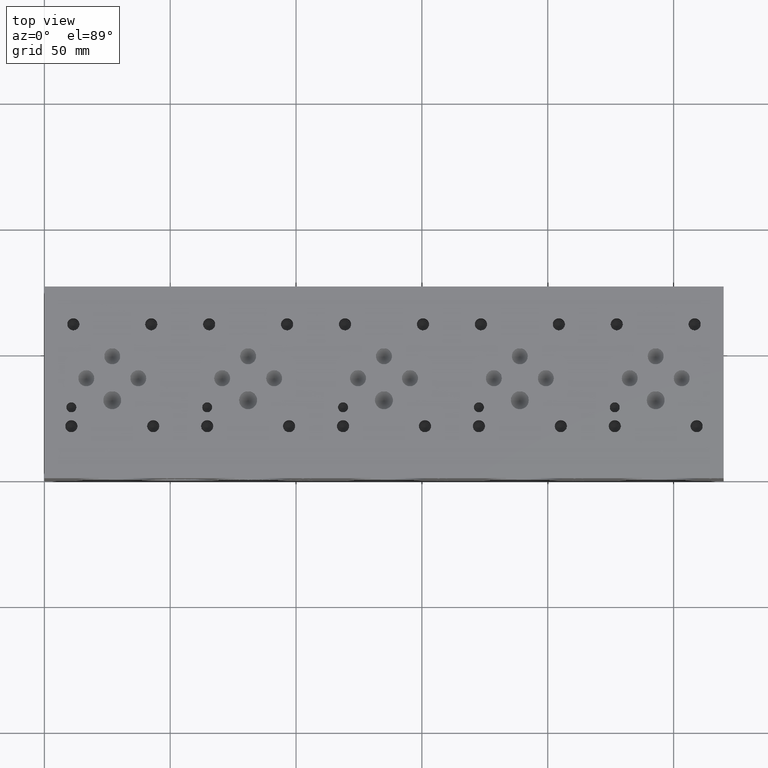
[diagram: clean part render]
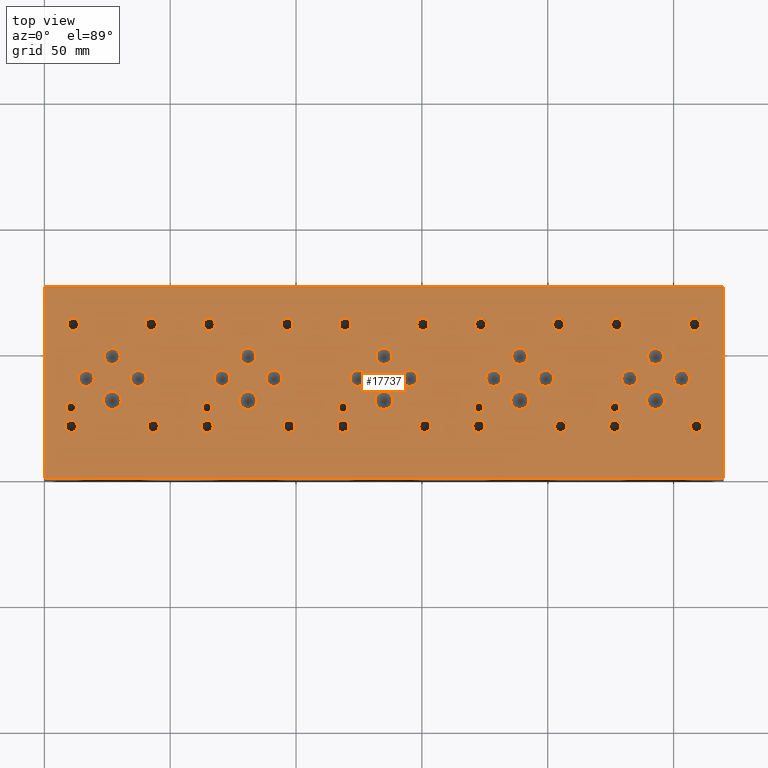
[diagram: same view with one face highlighted and labeled with its STEP entity id]
A machine part, top view. The second image highlights one B-rep face of the part: STEP entity #17737.
In plain terms, the highlighted planar face has unit normal (0, 0, 1).
Its self-contained STEP definition (entity closure, byte-faithful):
#596=CIRCLE('',#18650,1.9812);
#597=CIRCLE('',#18651,1.9812);
#600=CIRCLE('',#18656,1.9812);
#601=CIRCLE('',#18657,1.9812);
#604=CIRCLE('',#18662,1.9812);
#605=CIRCLE('',#18663,1.9812);
#608=CIRCLE('',#18668,1.9812);
#609=CIRCLE('',#18669,1.9812);
#612=CIRCLE('',#18674,3.5687);
#613=CIRCLE('',#18675,3.5687);
#616=CIRCLE('',#18680,3.5687);
#617=CIRCLE('',#18681,3.5687);
#620=CIRCLE('',#18686,3.5687);
#621=CIRCLE('',#18687,3.5687);
#624=CIRCLE('',#18692,3.5687);
#625=CIRCLE('',#18693,3.5687);
#628=CIRCLE('',#18698,3.5687);
#629=CIRCLE('',#18699,3.5687);
#632=CIRCLE('',#18704,3.175);
#633=CIRCLE('',#18705,3.175);
#636=CIRCLE('',#18710,3.175);
#637=CIRCLE('',#18711,3.175);
#640=CIRCLE('',#18716,3.175);
#641=CIRCLE('',#18717,3.175);
#644=CIRCLE('',#18722,3.175);
#645=CIRCLE('',#18723,3.175);
#648=CIRCLE('',#18728,3.175);
#649=CIRCLE('',#18729,3.175);
#652=CIRCLE('',#18734,3.175);
#653=CIRCLE('',#18735,3.175);
#656=CIRCLE('',#18740,3.175);
#657=CIRCLE('',#18741,3.175);
#660=CIRCLE('',#18746,3.175);
#661=CIRCLE('',#18747,3.175);
#664=CIRCLE('',#18752,3.175);
#665=CIRCLE('',#18753,3.175);
#668=CIRCLE('',#18758,3.175);
#669=CIRCLE('',#18759,3.175);
#672=CIRCLE('',#18764,3.175);
#673=CIRCLE('',#18765,3.175);
#676=CIRCLE('',#18770,3.175);
#677=CIRCLE('',#18771,3.175);
#680=CIRCLE('',#18776,3.175);
#681=CIRCLE('',#18777,3.175);
#684=CIRCLE('',#18782,3.175);
#685=CIRCLE('',#18783,3.175);
#688=CIRCLE('',#18788,3.175);
#689=CIRCLE('',#18789,3.175);
#692=CIRCLE('',#18794,1.9812);
#693=CIRCLE('',#18795,1.9812);
#699=CIRCLE('',#18804,2.413);
#700=CIRCLE('',#18805,2.413);
#706=CIRCLE('',#18815,2.413);
#707=CIRCLE('',#18816,2.413);
#713=CIRCLE('',#18826,2.413);
#714=CIRCLE('',#18827,2.413);
#720=CIRCLE('',#18837,2.413);
#721=CIRCLE('',#18838,2.413);
#727=CIRCLE('',#18848,2.413);
#728=CIRCLE('',#18849,2.413);
#734=CIRCLE('',#18859,2.413);
#735=CIRCLE('',#18860,2.413);
#741=CIRCLE('',#18870,2.413);
#742=CIRCLE('',#18871,2.413);
#748=CIRCLE('',#18881,2.413);
#749=CIRCLE('',#18882,2.413);
#755=CIRCLE('',#18892,2.413);
#756=CIRCLE('',#18893,2.413);
#762=CIRCLE('',#18903,2.413);
#763=CIRCLE('',#18904,2.413);
#769=CIRCLE('',#18914,2.413);
#770=CIRCLE('',#18915,2.413);
#776=CIRCLE('',#18925,2.413);
#777=CIRCLE('',#18926,2.413);
#783=CIRCLE('',#18936,2.413);
#784=CIRCLE('',#18937,2.413);
#790=CIRCLE('',#18947,2.413);
#791=CIRCLE('',#18948,2.413);
#797=CIRCLE('',#18958,2.413);
#798=CIRCLE('',#18959,2.413);
#804=CIRCLE('',#18969,2.413);
#805=CIRCLE('',#18970,2.413);
#811=CIRCLE('',#18980,2.413);
#812=CIRCLE('',#18981,2.413);
#818=CIRCLE('',#18991,2.413);
#819=CIRCLE('',#18992,2.413);
#825=CIRCLE('',#19002,2.413);
#826=CIRCLE('',#19003,2.413);
#832=CIRCLE('',#19013,2.413);
#833=CIRCLE('',#19014,2.413);
#965=FACE_BOUND('',#3639,.T.);
#966=FACE_BOUND('',#3640,.T.);
#967=FACE_BOUND('',#3641,.T.);
#968=FACE_BOUND('',#3642,.T.);
#969=FACE_BOUND('',#3643,.T.);
#970=FACE_BOUND('',#3644,.T.);
#971=FACE_BOUND('',#3645,.T.);
#972=FACE_BOUND('',#3646,.T.);
#973=FACE_BOUND('',#3647,.T.);
#974=FACE_BOUND('',#3648,.T.);
#975=FACE_BOUND('',#3649,.T.);
#976=FACE_BOUND('',#3650,.T.);
#977=FACE_BOUND('',#3651,.T.);
#978=FACE_BOUND('',#3652,.T.);
#979=FACE_BOUND('',#3653,.T.);
#980=FACE_BOUND('',#3654,.T.);
#981=FACE_BOUND('',#3655,.T.);
#982=FACE_BOUND('',#3656,.T.);
#983=FACE_BOUND('',#3657,.T.);
#984=FACE_BOUND('',#3658,.T.);
#985=FACE_BOUND('',#3659,.T.);
#986=FACE_BOUND('',#3660,.T.);
#987=FACE_BOUND('',#3661,.T.);
#988=FACE_BOUND('',#3662,.T.);
#989=FACE_BOUND('',#3663,.T.);
#990=FACE_BOUND('',#3664,.T.);
#991=FACE_BOUND('',#3665,.T.);
#992=FACE_BOUND('',#3666,.T.);
#993=FACE_BOUND('',#3667,.T.);
#994=FACE_BOUND('',#3668,.T.);
#995=FACE_BOUND('',#3669,.T.);
#996=FACE_BOUND('',#3670,.T.);
#997=FACE_BOUND('',#3671,.T.);
#998=FACE_BOUND('',#3672,.T.);
#999=FACE_BOUND('',#3673,.T.);
#1000=FACE_BOUND('',#3674,.T.);
#1001=FACE_BOUND('',#3675,.T.);
#1002=FACE_BOUND('',#3676,.T.);
#1003=FACE_BOUND('',#3677,.T.);
#1004=FACE_BOUND('',#3678,.T.);
#1005=FACE_BOUND('',#3679,.T.);
#1006=FACE_BOUND('',#3680,.T.);
#1007=FACE_BOUND('',#3681,.T.);
#1008=FACE_BOUND('',#3682,.T.);
#1009=FACE_BOUND('',#3683,.T.);
#2580=FACE_OUTER_BOUND('',#3638,.T.);
#3638=EDGE_LOOP('',(#15684,#15685,#15686,#15687));
#3639=EDGE_LOOP('',(#15688,#15689));
#3640=EDGE_LOOP('',(#15690,#15691));
#3641=EDGE_LOOP('',(#15692,#15693));
#3642=EDGE_LOOP('',(#15694,#15695));
#3643=EDGE_LOOP('',(#15696,#15697));
#3644=EDGE_LOOP('',(#15698,#15699));
#3645=EDGE_LOOP('',(#15700,#15701));
#3646=EDGE_LOOP('',(#15702,#15703));
#3647=EDGE_LOOP('',(#15704,#15705));
#3648=EDGE_LOOP('',(#15706,#15707));
#3649=EDGE_LOOP('',(#15708,#15709));
#3650=EDGE_LOOP('',(#15710,#15711));
#3651=EDGE_LOOP('',(#15712,#15713));
#3652=EDGE_LOOP('',(#15714,#15715));
#3653=EDGE_LOOP('',(#15716,#15717));
#3654=EDGE_LOOP('',(#15718,#15719));
#3655=EDGE_LOOP('',(#15720,#15721));
#3656=EDGE_LOOP('',(#15722,#15723));
#3657=EDGE_LOOP('',(#15724,#15725));
#3658=EDGE_LOOP('',(#15726,#15727));
#3659=EDGE_LOOP('',(#15728,#15729));
#3660=EDGE_LOOP('',(#15730,#15731));
#3661=EDGE_LOOP('',(#15732,#15733));
#3662=EDGE_LOOP('',(#15734,#15735));
#3663=EDGE_LOOP('',(#15736,#15737));
#3664=EDGE_LOOP('',(#15738,#15739));
#3665=EDGE_LOOP('',(#15740,#15741));
#3666=EDGE_LOOP('',(#15742,#15743));
#3667=EDGE_LOOP('',(#15744,#15745));
#3668=EDGE_LOOP('',(#15746,#15747));
#3669=EDGE_LOOP('',(#15748,#15749));
#3670=EDGE_LOOP('',(#15750,#15751));
#3671=EDGE_LOOP('',(#15752,#15753));
#3672=EDGE_LOOP('',(#15754,#15755));
#3673=EDGE_LOOP('',(#15756,#15757));
#3674=EDGE_LOOP('',(#15758,#15759));
#3675=EDGE_LOOP('',(#15760,#15761));
#3676=EDGE_LOOP('',(#15762,#15763));
#3677=EDGE_LOOP('',(#15764,#15765));
#3678=EDGE_LOOP('',(#15766,#15767));
#3679=EDGE_LOOP('',(#15768,#15769));
#3680=EDGE_LOOP('',(#15770,#15771));
#3681=EDGE_LOOP('',(#15772,#15773));
#3682=EDGE_LOOP('',(#15774,#15775));
#3683=EDGE_LOOP('',(#15776,#15777));
#3953=LINE('',#25413,#5436);
#4819=LINE('',#28931,#6302);
#4877=LINE('',#29202,#6360);
#5167=LINE('',#30954,#6650);
#5436=VECTOR('',#19418,10.);
#6302=VECTOR('',#20924,10.);
#6360=VECTOR('',#21036,10.);
#6650=VECTOR('',#23036,10.);
#6973=VERTEX_POINT('',#25410);
#6974=VERTEX_POINT('',#25412);
#7706=VERTEX_POINT('',#28929);
#7764=VERTEX_POINT('',#29201);
#8090=VERTEX_POINT('',#30194);
#8091=VERTEX_POINT('',#30195);
#8095=VERTEX_POINT('',#30207);
#8096=VERTEX_POINT('',#30208);
#8100=VERTEX_POINT('',#30220);
#8101=VERTEX_POINT('',#30221);
#8105=VERTEX_POINT('',#30233);
#8106=VERTEX_POINT('',#30234);
#8110=VERTEX_POINT('',#30246);
#8111=VERTEX_POINT('',#30247);
#8115=VERTEX_POINT('',#30259);
#8116=VERTEX_POINT('',#30260);
#8120=VERTEX_POINT('',#30272);
#8121=VERTEX_POINT('',#30273);
#8125=VERTEX_POINT('',#30285);
#8126=VERTEX_POINT('',#30286);
#8130=VERTEX_POINT('',#30298);
#8131=VERTEX_POINT('',#30299);
#8135=VERTEX_POINT('',#30311);
#8136=VERTEX_POINT('',#30312);
#8140=VERTEX_POINT('',#30324);
#8141=VERTEX_POINT('',#30325);
#8145=VERTEX_POINT('',#30337);
#8146=VERTEX_POINT('',#30338);
#8150=VERTEX_POINT('',#30350);
#8151=VERTEX_POINT('',#30351);
#8155=VERTEX_POINT('',#30363);
#8156=VERTEX_POINT('',#30364);
#8160=VERTEX_POINT('',#30376);
#8161=VERTEX_POINT('',#30377);
#8165=VERTEX_POINT('',#30389);
#8166=VERTEX_POINT('',#30390);
#8170=VERTEX_POINT('',#30402);
#8171=VERTEX_POINT('',#30403);
#8175=VERTEX_POINT('',#30415);
#8176=VERTEX_POINT('',#30416);
#8180=VERTEX_POINT('',#30428);
#8181=VERTEX_POINT('',#30429);
#8185=VERTEX_POINT('',#30441);
#8186=VERTEX_POINT('',#30442);
#8190=VERTEX_POINT('',#30454);
#8191=VERTEX_POINT('',#30455);
#8195=VERTEX_POINT('',#30467);
#8196=VERTEX_POINT('',#30468);
#8200=VERTEX_POINT('',#30480);
#8201=VERTEX_POINT('',#30481);
#8205=VERTEX_POINT('',#30493);
#8206=VERTEX_POINT('',#30494);
#8210=VERTEX_POINT('',#30506);
#8211=VERTEX_POINT('',#30507);
#8218=VERTEX_POINT('',#30526);
#8219=VERTEX_POINT('',#30527);
#8226=VERTEX_POINT('',#30548);
#8227=VERTEX_POINT('',#30549);
#8234=VERTEX_POINT('',#30570);
#8235=VERTEX_POINT('',#30571);
#8242=VERTEX_POINT('',#30592);
#8243=VERTEX_POINT('',#30593);
#8250=VERTEX_POINT('',#30614);
#8251=VERTEX_POINT('',#30615);
#8258=VERTEX_POINT('',#30636);
#8259=VERTEX_POINT('',#30637);
#8266=VERTEX_POINT('',#30658);
#8267=VERTEX_POINT('',#30659);
#8274=VERTEX_POINT('',#30680);
#8275=VERTEX_POINT('',#30681);
#8282=VERTEX_POINT('',#30702);
#8283=VERTEX_POINT('',#30703);
#8290=VERTEX_POINT('',#30724);
#8291=VERTEX_POINT('',#30725);
#8298=VERTEX_POINT('',#30746);
#8299=VERTEX_POINT('',#30747);
#8306=VERTEX_POINT('',#30768);
#8307=VERTEX_POINT('',#30769);
#8314=VERTEX_POINT('',#30790);
#8315=VERTEX_POINT('',#30791);
#8322=VERTEX_POINT('',#30812);
#8323=VERTEX_POINT('',#30813);
#8330=VERTEX_POINT('',#30834);
#8331=VERTEX_POINT('',#30835);
#8338=VERTEX_POINT('',#30856);
#8339=VERTEX_POINT('',#30857);
#8346=VERTEX_POINT('',#30878);
#8347=VERTEX_POINT('',#30879);
#8354=VERTEX_POINT('',#30900);
#8355=VERTEX_POINT('',#30901);
#8362=VERTEX_POINT('',#30922);
#8363=VERTEX_POINT('',#30923);
#8370=VERTEX_POINT('',#30944);
#8371=VERTEX_POINT('',#30945);
#8854=EDGE_CURVE('',#6974,#6973,#3953,.T.);
#9942=EDGE_CURVE('',#6973,#7706,#4819,.T.);
#10024=EDGE_CURVE('',#7764,#6974,#4877,.T.);
#10493=EDGE_CURVE('',#8090,#8091,#596,.T.);
#10494=EDGE_CURVE('',#8091,#8090,#597,.T.);
#10499=EDGE_CURVE('',#8095,#8096,#600,.T.);
#10500=EDGE_CURVE('',#8096,#8095,#601,.T.);
#10505=EDGE_CURVE('',#8100,#8101,#604,.T.);
#10506=EDGE_CURVE('',#8101,#8100,#605,.T.);
#10511=EDGE_CURVE('',#8105,#8106,#608,.T.);
#10512=EDGE_CURVE('',#8106,#8105,#609,.T.);
#10517=EDGE_CURVE('',#8110,#8111,#612,.T.);
#10518=EDGE_CURVE('',#8111,#8110,#613,.T.);
#10523=EDGE_CURVE('',#8115,#8116,#616,.T.);
#10524=EDGE_CURVE('',#8116,#8115,#617,.T.);
#10529=EDGE_CURVE('',#8120,#8121,#620,.T.);
#10530=EDGE_CURVE('',#8121,#8120,#621,.T.);
#10535=EDGE_CURVE('',#8125,#8126,#624,.T.);
#10536=EDGE_CURVE('',#8126,#8125,#625,.T.);
#10541=EDGE_CURVE('',#8130,#8131,#628,.T.);
#10542=EDGE_CURVE('',#8131,#8130,#629,.T.);
#10547=EDGE_CURVE('',#8135,#8136,#632,.T.);
#10548=EDGE_CURVE('',#8136,#8135,#633,.T.);
#10553=EDGE_CURVE('',#8140,#8141,#636,.T.);
#10554=EDGE_CURVE('',#8141,#8140,#637,.T.);
#10559=EDGE_CURVE('',#8145,#8146,#640,.T.);
#10560=EDGE_CURVE('',#8146,#8145,#641,.T.);
#10565=EDGE_CURVE('',#8150,#8151,#644,.T.);
#10566=EDGE_CURVE('',#8151,#8150,#645,.T.);
#10571=EDGE_CURVE('',#8155,#8156,#648,.T.);
#10572=EDGE_CURVE('',#8156,#8155,#649,.T.);
#10577=EDGE_CURVE('',#8160,#8161,#652,.T.);
#10578=EDGE_CURVE('',#8161,#8160,#653,.T.);
#10583=EDGE_CURVE('',#8165,#8166,#656,.T.);
#10584=EDGE_CURVE('',#8166,#8165,#657,.T.);
#10589=EDGE_CURVE('',#8170,#8171,#660,.T.);
#10590=EDGE_CURVE('',#8171,#8170,#661,.T.);
#10595=EDGE_CURVE('',#8175,#8176,#664,.T.);
#10596=EDGE_CURVE('',#8176,#8175,#665,.T.);
#10601=EDGE_CURVE('',#8180,#8181,#668,.T.);
#10602=EDGE_CURVE('',#8181,#8180,#669,.T.);
#10607=EDGE_CURVE('',#8185,#8186,#672,.T.);
#10608=EDGE_CURVE('',#8186,#8185,#673,.T.);
#10613=EDGE_CURVE('',#8190,#8191,#676,.T.);
#10614=EDGE_CURVE('',#8191,#8190,#677,.T.);
#10619=EDGE_CURVE('',#8195,#8196,#680,.T.);
#10620=EDGE_CURVE('',#8196,#8195,#681,.T.);
#10625=EDGE_CURVE('',#8200,#8201,#684,.T.);
#10626=EDGE_CURVE('',#8201,#8200,#685,.T.);
#10631=EDGE_CURVE('',#8205,#8206,#688,.T.);
#10632=EDGE_CURVE('',#8206,#8205,#689,.T.);
#10637=EDGE_CURVE('',#8210,#8211,#692,.T.);
#10638=EDGE_CURVE('',#8211,#8210,#693,.T.);
#10646=EDGE_CURVE('',#8218,#8219,#699,.T.);
#10647=EDGE_CURVE('',#8219,#8218,#700,.T.);
#10656=EDGE_CURVE('',#8226,#8227,#706,.T.);
#10657=EDGE_CURVE('',#8227,#8226,#707,.T.);
#10666=EDGE_CURVE('',#8234,#8235,#713,.T.);
#10667=EDGE_CURVE('',#8235,#8234,#714,.T.);
#10676=EDGE_CURVE('',#8242,#8243,#720,.T.);
#10677=EDGE_CURVE('',#8243,#8242,#721,.T.);
#10686=EDGE_CURVE('',#8250,#8251,#727,.T.);
#10687=EDGE_CURVE('',#8251,#8250,#728,.T.);
#10696=EDGE_CURVE('',#8258,#8259,#734,.T.);
#10697=EDGE_CURVE('',#8259,#8258,#735,.T.);
#10706=EDGE_CURVE('',#8266,#8267,#741,.T.);
#10707=EDGE_CURVE('',#8267,#8266,#742,.T.);
#10716=EDGE_CURVE('',#8274,#8275,#748,.T.);
#10717=EDGE_CURVE('',#8275,#8274,#749,.T.);
#10726=EDGE_CURVE('',#8282,#8283,#755,.T.);
#10727=EDGE_CURVE('',#8283,#8282,#756,.T.);
#10736=EDGE_CURVE('',#8290,#8291,#762,.T.);
#10737=EDGE_CURVE('',#8291,#8290,#763,.T.);
#10746=EDGE_CURVE('',#8298,#8299,#769,.T.);
#10747=EDGE_CURVE('',#8299,#8298,#770,.T.);
#10756=EDGE_CURVE('',#8306,#8307,#776,.T.);
#10757=EDGE_CURVE('',#8307,#8306,#777,.T.);
#10766=EDGE_CURVE('',#8314,#8315,#783,.T.);
#10767=EDGE_CURVE('',#8315,#8314,#784,.T.);
#10776=EDGE_CURVE('',#8322,#8323,#790,.T.);
#10777=EDGE_CURVE('',#8323,#8322,#791,.T.);
#10786=EDGE_CURVE('',#8330,#8331,#797,.T.);
#10787=EDGE_CURVE('',#8331,#8330,#798,.T.);
#10796=EDGE_CURVE('',#8338,#8339,#804,.T.);
#10797=EDGE_CURVE('',#8339,#8338,#805,.T.);
#10806=EDGE_CURVE('',#8346,#8347,#811,.T.);
#10807=EDGE_CURVE('',#8347,#8346,#812,.T.);
#10816=EDGE_CURVE('',#8354,#8355,#818,.T.);
#10817=EDGE_CURVE('',#8355,#8354,#819,.T.);
#10826=EDGE_CURVE('',#8362,#8363,#825,.T.);
#10827=EDGE_CURVE('',#8363,#8362,#826,.T.);
#10836=EDGE_CURVE('',#8370,#8371,#832,.T.);
#10837=EDGE_CURVE('',#8371,#8370,#833,.T.);
#10841=EDGE_CURVE('',#7706,#7764,#5167,.T.);
#15684=ORIENTED_EDGE('',*,*,#8854,.T.);
#15685=ORIENTED_EDGE('',*,*,#9942,.T.);
#15686=ORIENTED_EDGE('',*,*,#10841,.T.);
#15687=ORIENTED_EDGE('',*,*,#10024,.T.);
#15688=ORIENTED_EDGE('',*,*,#10493,.T.);
#15689=ORIENTED_EDGE('',*,*,#10494,.T.);
#15690=ORIENTED_EDGE('',*,*,#10499,.T.);
#15691=ORIENTED_EDGE('',*,*,#10500,.T.);
#15692=ORIENTED_EDGE('',*,*,#10505,.T.);
#15693=ORIENTED_EDGE('',*,*,#10506,.T.);
#15694=ORIENTED_EDGE('',*,*,#10511,.T.);
#15695=ORIENTED_EDGE('',*,*,#10512,.T.);
#15696=ORIENTED_EDGE('',*,*,#10517,.T.);
#15697=ORIENTED_EDGE('',*,*,#10518,.T.);
#15698=ORIENTED_EDGE('',*,*,#10523,.T.);
#15699=ORIENTED_EDGE('',*,*,#10524,.T.);
#15700=ORIENTED_EDGE('',*,*,#10529,.T.);
#15701=ORIENTED_EDGE('',*,*,#10530,.T.);
#15702=ORIENTED_EDGE('',*,*,#10535,.T.);
#15703=ORIENTED_EDGE('',*,*,#10536,.T.);
#15704=ORIENTED_EDGE('',*,*,#10541,.T.);
#15705=ORIENTED_EDGE('',*,*,#10542,.T.);
#15706=ORIENTED_EDGE('',*,*,#10547,.T.);
#15707=ORIENTED_EDGE('',*,*,#10548,.T.);
#15708=ORIENTED_EDGE('',*,*,#10553,.T.);
#15709=ORIENTED_EDGE('',*,*,#10554,.T.);
#15710=ORIENTED_EDGE('',*,*,#10559,.T.);
#15711=ORIENTED_EDGE('',*,*,#10560,.T.);
#15712=ORIENTED_EDGE('',*,*,#10565,.T.);
#15713=ORIENTED_EDGE('',*,*,#10566,.T.);
#15714=ORIENTED_EDGE('',*,*,#10571,.T.);
#15715=ORIENTED_EDGE('',*,*,#10572,.T.);
#15716=ORIENTED_EDGE('',*,*,#10577,.T.);
#15717=ORIENTED_EDGE('',*,*,#10578,.T.);
#15718=ORIENTED_EDGE('',*,*,#10583,.T.);
#15719=ORIENTED_EDGE('',*,*,#10584,.T.);
#15720=ORIENTED_EDGE('',*,*,#10589,.T.);
#15721=ORIENTED_EDGE('',*,*,#10590,.T.);
#15722=ORIENTED_EDGE('',*,*,#10595,.T.);
#15723=ORIENTED_EDGE('',*,*,#10596,.T.);
#15724=ORIENTED_EDGE('',*,*,#10601,.T.);
#15725=ORIENTED_EDGE('',*,*,#10602,.T.);
#15726=ORIENTED_EDGE('',*,*,#10607,.T.);
#15727=ORIENTED_EDGE('',*,*,#10608,.T.);
#15728=ORIENTED_EDGE('',*,*,#10613,.T.);
#15729=ORIENTED_EDGE('',*,*,#10614,.T.);
#15730=ORIENTED_EDGE('',*,*,#10619,.T.);
#15731=ORIENTED_EDGE('',*,*,#10620,.T.);
#15732=ORIENTED_EDGE('',*,*,#10625,.T.);
#15733=ORIENTED_EDGE('',*,*,#10626,.T.);
#15734=ORIENTED_EDGE('',*,*,#10631,.T.);
#15735=ORIENTED_EDGE('',*,*,#10632,.T.);
#15736=ORIENTED_EDGE('',*,*,#10637,.T.);
#15737=ORIENTED_EDGE('',*,*,#10638,.T.);
#15738=ORIENTED_EDGE('',*,*,#10646,.T.);
#15739=ORIENTED_EDGE('',*,*,#10647,.T.);
#15740=ORIENTED_EDGE('',*,*,#10656,.T.);
#15741=ORIENTED_EDGE('',*,*,#10657,.T.);
#15742=ORIENTED_EDGE('',*,*,#10666,.T.);
#15743=ORIENTED_EDGE('',*,*,#10667,.T.);
#15744=ORIENTED_EDGE('',*,*,#10676,.T.);
#15745=ORIENTED_EDGE('',*,*,#10677,.T.);
#15746=ORIENTED_EDGE('',*,*,#10686,.T.);
#15747=ORIENTED_EDGE('',*,*,#10687,.T.);
#15748=ORIENTED_EDGE('',*,*,#10696,.T.);
#15749=ORIENTED_EDGE('',*,*,#10697,.T.);
#15750=ORIENTED_EDGE('',*,*,#10706,.T.);
#15751=ORIENTED_EDGE('',*,*,#10707,.T.);
#15752=ORIENTED_EDGE('',*,*,#10716,.T.);
#15753=ORIENTED_EDGE('',*,*,#10717,.T.);
#15754=ORIENTED_EDGE('',*,*,#10726,.T.);
#15755=ORIENTED_EDGE('',*,*,#10727,.T.);
#15756=ORIENTED_EDGE('',*,*,#10736,.T.);
#15757=ORIENTED_EDGE('',*,*,#10737,.T.);
#15758=ORIENTED_EDGE('',*,*,#10746,.T.);
#15759=ORIENTED_EDGE('',*,*,#10747,.T.);
#15760=ORIENTED_EDGE('',*,*,#10756,.T.);
#15761=ORIENTED_EDGE('',*,*,#10757,.T.);
#15762=ORIENTED_EDGE('',*,*,#10766,.T.);
#15763=ORIENTED_EDGE('',*,*,#10767,.T.);
#15764=ORIENTED_EDGE('',*,*,#10776,.T.);
#15765=ORIENTED_EDGE('',*,*,#10777,.T.);
#15766=ORIENTED_EDGE('',*,*,#10786,.T.);
#15767=ORIENTED_EDGE('',*,*,#10787,.T.);
#15768=ORIENTED_EDGE('',*,*,#10796,.T.);
#15769=ORIENTED_EDGE('',*,*,#10797,.T.);
#15770=ORIENTED_EDGE('',*,*,#10806,.T.);
#15771=ORIENTED_EDGE('',*,*,#10807,.T.);
#15772=ORIENTED_EDGE('',*,*,#10816,.T.);
#15773=ORIENTED_EDGE('',*,*,#10817,.T.);
#15774=ORIENTED_EDGE('',*,*,#10826,.T.);
#15775=ORIENTED_EDGE('',*,*,#10827,.T.);
#15776=ORIENTED_EDGE('',*,*,#10836,.T.);
#15777=ORIENTED_EDGE('',*,*,#10837,.T.);
#16229=PLANE('',#19020);
#17737=ADVANCED_FACE('',(#2580,#965,#966,#967,#968,#969,#970,#971,#972,
#973,#974,#975,#976,#977,#978,#979,#980,#981,#982,#983,#984,#985,#986,#987,
#988,#989,#990,#991,#992,#993,#994,#995,#996,#997,#998,#999,#1000,#1001,
#1002,#1003,#1004,#1005,#1006,#1007,#1008,#1009),#16229,.T.);
#18650=AXIS2_PLACEMENT_3D('',#30196,#22190,#22191);
#18651=AXIS2_PLACEMENT_3D('',#30197,#22192,#22193);
#18656=AXIS2_PLACEMENT_3D('',#30209,#22204,#22205);
#18657=AXIS2_PLACEMENT_3D('',#30210,#22206,#22207);
#18662=AXIS2_PLACEMENT_3D('',#30222,#22218,#22219);
#18663=AXIS2_PLACEMENT_3D('',#30223,#22220,#22221);
#18668=AXIS2_PLACEMENT_3D('',#30235,#22232,#22233);
#18669=AXIS2_PLACEMENT_3D('',#30236,#22234,#22235);
#18674=AXIS2_PLACEMENT_3D('',#30248,#22246,#22247);
#18675=AXIS2_PLACEMENT_3D('',#30249,#22248,#22249);
#18680=AXIS2_PLACEMENT_3D('',#30261,#22260,#22261);
#18681=AXIS2_PLACEMENT_3D('',#30262,#22262,#22263);
#18686=AXIS2_PLACEMENT_3D('',#30274,#22274,#22275);
#18687=AXIS2_PLACEMENT_3D('',#30275,#22276,#22277);
#18692=AXIS2_PLACEMENT_3D('',#30287,#22288,#22289);
#18693=AXIS2_PLACEMENT_3D('',#30288,#22290,#22291);
#18698=AXIS2_PLACEMENT_3D('',#30300,#22302,#22303);
#18699=AXIS2_PLACEMENT_3D('',#30301,#22304,#22305);
#18704=AXIS2_PLACEMENT_3D('',#30313,#22316,#22317);
#18705=AXIS2_PLACEMENT_3D('',#30314,#22318,#22319);
#18710=AXIS2_PLACEMENT_3D('',#30326,#22330,#22331);
#18711=AXIS2_PLACEMENT_3D('',#30327,#22332,#22333);
#18716=AXIS2_PLACEMENT_3D('',#30339,#22344,#22345);
#18717=AXIS2_PLACEMENT_3D('',#30340,#22346,#22347);
#18722=AXIS2_PLACEMENT_3D('',#30352,#22358,#22359);
#18723=AXIS2_PLACEMENT_3D('',#30353,#22360,#22361);
#18728=AXIS2_PLACEMENT_3D('',#30365,#22372,#22373);
#18729=AXIS2_PLACEMENT_3D('',#30366,#22374,#22375);
#18734=AXIS2_PLACEMENT_3D('',#30378,#22386,#22387);
#18735=AXIS2_PLACEMENT_3D('',#30379,#22388,#22389);
#18740=AXIS2_PLACEMENT_3D('',#30391,#22400,#22401);
#18741=AXIS2_PLACEMENT_3D('',#30392,#22402,#22403);
#18746=AXIS2_PLACEMENT_3D('',#30404,#22414,#22415);
#18747=AXIS2_PLACEMENT_3D('',#30405,#22416,#22417);
#18752=AXIS2_PLACEMENT_3D('',#30417,#22428,#22429);
#18753=AXIS2_PLACEMENT_3D('',#30418,#22430,#22431);
#18758=AXIS2_PLACEMENT_3D('',#30430,#22442,#22443);
#18759=AXIS2_PLACEMENT_3D('',#30431,#22444,#22445);
#18764=AXIS2_PLACEMENT_3D('',#30443,#22456,#22457);
#18765=AXIS2_PLACEMENT_3D('',#30444,#22458,#22459);
#18770=AXIS2_PLACEMENT_3D('',#30456,#22470,#22471);
#18771=AXIS2_PLACEMENT_3D('',#30457,#22472,#22473);
#18776=AXIS2_PLACEMENT_3D('',#30469,#22484,#22485);
#18777=AXIS2_PLACEMENT_3D('',#30470,#22486,#22487);
#18782=AXIS2_PLACEMENT_3D('',#30482,#22498,#22499);
#18783=AXIS2_PLACEMENT_3D('',#30483,#22500,#22501);
#18788=AXIS2_PLACEMENT_3D('',#30495,#22512,#22513);
#18789=AXIS2_PLACEMENT_3D('',#30496,#22514,#22515);
#18794=AXIS2_PLACEMENT_3D('',#30508,#22526,#22527);
#18795=AXIS2_PLACEMENT_3D('',#30509,#22528,#22529);
#18804=AXIS2_PLACEMENT_3D('',#30528,#22548,#22549);
#18805=AXIS2_PLACEMENT_3D('',#30529,#22550,#22551);
#18815=AXIS2_PLACEMENT_3D('',#30550,#22573,#22574);
#18816=AXIS2_PLACEMENT_3D('',#30551,#22575,#22576);
#18826=AXIS2_PLACEMENT_3D('',#30572,#22598,#22599);
#18827=AXIS2_PLACEMENT_3D('',#30573,#22600,#22601);
#18837=AXIS2_PLACEMENT_3D('',#30594,#22623,#22624);
#18838=AXIS2_PLACEMENT_3D('',#30595,#22625,#22626);
#18848=AXIS2_PLACEMENT_3D('',#30616,#22648,#22649);
#18849=AXIS2_PLACEMENT_3D('',#30617,#22650,#22651);
#18859=AXIS2_PLACEMENT_3D('',#30638,#22673,#22674);
#18860=AXIS2_PLACEMENT_3D('',#30639,#22675,#22676);
#18870=AXIS2_PLACEMENT_3D('',#30660,#22698,#22699);
#18871=AXIS2_PLACEMENT_3D('',#30661,#22700,#22701);
#18881=AXIS2_PLACEMENT_3D('',#30682,#22723,#22724);
#18882=AXIS2_PLACEMENT_3D('',#30683,#22725,#22726);
#18892=AXIS2_PLACEMENT_3D('',#30704,#22748,#22749);
#18893=AXIS2_PLACEMENT_3D('',#30705,#22750,#22751);
#18903=AXIS2_PLACEMENT_3D('',#30726,#22773,#22774);
#18904=AXIS2_PLACEMENT_3D('',#30727,#22775,#22776);
#18914=AXIS2_PLACEMENT_3D('',#30748,#22798,#22799);
#18915=AXIS2_PLACEMENT_3D('',#30749,#22800,#22801);
#18925=AXIS2_PLACEMENT_3D('',#30770,#22823,#22824);
#18926=AXIS2_PLACEMENT_3D('',#30771,#22825,#22826);
#18936=AXIS2_PLACEMENT_3D('',#30792,#22848,#22849);
#18937=AXIS2_PLACEMENT_3D('',#30793,#22850,#22851);
#18947=AXIS2_PLACEMENT_3D('',#30814,#22873,#22874);
#18948=AXIS2_PLACEMENT_3D('',#30815,#22875,#22876);
#18958=AXIS2_PLACEMENT_3D('',#30836,#22898,#22899);
#18959=AXIS2_PLACEMENT_3D('',#30837,#22900,#22901);
#18969=AXIS2_PLACEMENT_3D('',#30858,#22923,#22924);
#18970=AXIS2_PLACEMENT_3D('',#30859,#22925,#22926);
#18980=AXIS2_PLACEMENT_3D('',#30880,#22948,#22949);
#18981=AXIS2_PLACEMENT_3D('',#30881,#22950,#22951);
#18991=AXIS2_PLACEMENT_3D('',#30902,#22973,#22974);
#18992=AXIS2_PLACEMENT_3D('',#30903,#22975,#22976);
#19002=AXIS2_PLACEMENT_3D('',#30924,#22998,#22999);
#19003=AXIS2_PLACEMENT_3D('',#30925,#23000,#23001);
#19013=AXIS2_PLACEMENT_3D('',#30946,#23023,#23024);
#19014=AXIS2_PLACEMENT_3D('',#30947,#23025,#23026);
#19020=AXIS2_PLACEMENT_3D('',#30957,#23041,#23042);
#19418=DIRECTION('',(1.,0.,0.));
#20924=DIRECTION('',(0.,1.,0.));
#21036=DIRECTION('',(0.,-1.,0.));
#22190=DIRECTION('center_axis',(0.,0.,-1.));
#22191=DIRECTION('ref_axis',(1.,0.,0.));
#22192=DIRECTION('center_axis',(0.,0.,-1.));
#22193=DIRECTION('ref_axis',(1.,0.,0.));
#22204=DIRECTION('center_axis',(0.,0.,-1.));
#22205=DIRECTION('ref_axis',(1.,0.,0.));
#22206=DIRECTION('center_axis',(0.,0.,-1.));
#22207=DIRECTION('ref_axis',(1.,0.,0.));
#22218=DIRECTION('center_axis',(0.,0.,-1.));
#22219=DIRECTION('ref_axis',(1.,0.,0.));
#22220=DIRECTION('center_axis',(0.,0.,-1.));
#22221=DIRECTION('ref_axis',(1.,0.,0.));
#22232=DIRECTION('center_axis',(0.,0.,-1.));
#22233=DIRECTION('ref_axis',(1.,0.,0.));
#22234=DIRECTION('center_axis',(0.,0.,-1.));
#22235=DIRECTION('ref_axis',(1.,0.,0.));
#22246=DIRECTION('center_axis',(0.,0.,-1.));
#22247=DIRECTION('ref_axis',(1.,0.,0.));
#22248=DIRECTION('center_axis',(0.,0.,-1.));
#22249=DIRECTION('ref_axis',(1.,0.,0.));
#22260=DIRECTION('center_axis',(0.,0.,-1.));
#22261=DIRECTION('ref_axis',(1.,0.,0.));
#22262=DIRECTION('center_axis',(0.,0.,-1.));
#22263=DIRECTION('ref_axis',(1.,0.,0.));
#22274=DIRECTION('center_axis',(0.,0.,-1.));
#22275=DIRECTION('ref_axis',(1.,0.,0.));
#22276=DIRECTION('center_axis',(0.,0.,-1.));
#22277=DIRECTION('ref_axis',(1.,0.,0.));
#22288=DIRECTION('center_axis',(0.,0.,-1.));
#22289=DIRECTION('ref_axis',(1.,0.,0.));
#22290=DIRECTION('center_axis',(0.,0.,-1.));
#22291=DIRECTION('ref_axis',(1.,0.,0.));
#22302=DIRECTION('center_axis',(0.,0.,-1.));
#22303=DIRECTION('ref_axis',(1.,0.,0.));
#22304=DIRECTION('center_axis',(0.,0.,-1.));
#22305=DIRECTION('ref_axis',(1.,0.,0.));
#22316=DIRECTION('center_axis',(0.,0.,-1.));
#22317=DIRECTION('ref_axis',(1.,0.,0.));
#22318=DIRECTION('center_axis',(0.,0.,-1.));
#22319=DIRECTION('ref_axis',(1.,0.,0.));
#22330=DIRECTION('center_axis',(0.,0.,-1.));
#22331=DIRECTION('ref_axis',(1.,0.,0.));
#22332=DIRECTION('center_axis',(0.,0.,-1.));
#22333=DIRECTION('ref_axis',(1.,0.,0.));
#22344=DIRECTION('center_axis',(0.,0.,-1.));
#22345=DIRECTION('ref_axis',(1.,0.,0.));
#22346=DIRECTION('center_axis',(0.,0.,-1.));
#22347=DIRECTION('ref_axis',(1.,0.,0.));
#22358=DIRECTION('center_axis',(0.,0.,-1.));
#22359=DIRECTION('ref_axis',(1.,0.,0.));
#22360=DIRECTION('center_axis',(0.,0.,-1.));
#22361=DIRECTION('ref_axis',(1.,0.,0.));
#22372=DIRECTION('center_axis',(0.,0.,-1.));
#22373=DIRECTION('ref_axis',(1.,0.,0.));
#22374=DIRECTION('center_axis',(0.,0.,-1.));
#22375=DIRECTION('ref_axis',(1.,0.,0.));
#22386=DIRECTION('center_axis',(0.,0.,-1.));
#22387=DIRECTION('ref_axis',(1.,0.,0.));
#22388=DIRECTION('center_axis',(0.,0.,-1.));
#22389=DIRECTION('ref_axis',(1.,0.,0.));
#22400=DIRECTION('center_axis',(0.,0.,-1.));
#22401=DIRECTION('ref_axis',(1.,0.,0.));
#22402=DIRECTION('center_axis',(0.,0.,-1.));
#22403=DIRECTION('ref_axis',(1.,0.,0.));
#22414=DIRECTION('center_axis',(0.,0.,-1.));
#22415=DIRECTION('ref_axis',(1.,0.,0.));
#22416=DIRECTION('center_axis',(0.,0.,-1.));
#22417=DIRECTION('ref_axis',(1.,0.,0.));
#22428=DIRECTION('center_axis',(0.,0.,-1.));
#22429=DIRECTION('ref_axis',(1.,0.,0.));
#22430=DIRECTION('center_axis',(0.,0.,-1.));
#22431=DIRECTION('ref_axis',(1.,0.,0.));
#22442=DIRECTION('center_axis',(0.,0.,-1.));
#22443=DIRECTION('ref_axis',(1.,0.,0.));
#22444=DIRECTION('center_axis',(0.,0.,-1.));
#22445=DIRECTION('ref_axis',(1.,0.,0.));
#22456=DIRECTION('center_axis',(0.,0.,-1.));
#22457=DIRECTION('ref_axis',(1.,0.,0.));
#22458=DIRECTION('center_axis',(0.,0.,-1.));
#22459=DIRECTION('ref_axis',(1.,0.,0.));
#22470=DIRECTION('center_axis',(0.,0.,-1.));
#22471=DIRECTION('ref_axis',(1.,0.,0.));
#22472=DIRECTION('center_axis',(0.,0.,-1.));
#22473=DIRECTION('ref_axis',(1.,0.,0.));
#22484=DIRECTION('center_axis',(0.,0.,-1.));
#22485=DIRECTION('ref_axis',(1.,0.,0.));
#22486=DIRECTION('center_axis',(0.,0.,-1.));
#22487=DIRECTION('ref_axis',(1.,0.,0.));
#22498=DIRECTION('center_axis',(0.,0.,-1.));
#22499=DIRECTION('ref_axis',(1.,0.,0.));
#22500=DIRECTION('center_axis',(0.,0.,-1.));
#22501=DIRECTION('ref_axis',(1.,0.,0.));
#22512=DIRECTION('center_axis',(0.,0.,-1.));
#22513=DIRECTION('ref_axis',(1.,0.,0.));
#22514=DIRECTION('center_axis',(0.,0.,-1.));
#22515=DIRECTION('ref_axis',(1.,0.,0.));
#22526=DIRECTION('center_axis',(0.,0.,-1.));
#22527=DIRECTION('ref_axis',(1.,0.,0.));
#22528=DIRECTION('center_axis',(0.,0.,-1.));
#22529=DIRECTION('ref_axis',(1.,0.,0.));
#22548=DIRECTION('center_axis',(0.,0.,-1.));
#22549=DIRECTION('ref_axis',(1.,0.,0.));
#22550=DIRECTION('center_axis',(0.,0.,-1.));
#22551=DIRECTION('ref_axis',(1.,0.,0.));
#22573=DIRECTION('center_axis',(0.,0.,-1.));
#22574=DIRECTION('ref_axis',(1.,0.,0.));
#22575=DIRECTION('center_axis',(0.,0.,-1.));
#22576=DIRECTION('ref_axis',(1.,0.,0.));
#22598=DIRECTION('center_axis',(0.,0.,-1.));
#22599=DIRECTION('ref_axis',(1.,0.,0.));
#22600=DIRECTION('center_axis',(0.,0.,-1.));
#22601=DIRECTION('ref_axis',(1.,0.,0.));
#22623=DIRECTION('center_axis',(0.,0.,-1.));
#22624=DIRECTION('ref_axis',(1.,0.,0.));
#22625=DIRECTION('center_axis',(0.,0.,-1.));
#22626=DIRECTION('ref_axis',(1.,0.,0.));
#22648=DIRECTION('center_axis',(0.,0.,-1.));
#22649=DIRECTION('ref_axis',(1.,0.,0.));
#22650=DIRECTION('center_axis',(0.,0.,-1.));
#22651=DIRECTION('ref_axis',(1.,0.,0.));
#22673=DIRECTION('center_axis',(0.,0.,-1.));
#22674=DIRECTION('ref_axis',(1.,0.,0.));
#22675=DIRECTION('center_axis',(0.,0.,-1.));
#22676=DIRECTION('ref_axis',(1.,0.,0.));
#22698=DIRECTION('center_axis',(0.,0.,-1.));
#22699=DIRECTION('ref_axis',(1.,0.,0.));
#22700=DIRECTION('center_axis',(0.,0.,-1.));
#22701=DIRECTION('ref_axis',(1.,0.,0.));
#22723=DIRECTION('center_axis',(0.,0.,-1.));
#22724=DIRECTION('ref_axis',(1.,0.,0.));
#22725=DIRECTION('center_axis',(0.,0.,-1.));
#22726=DIRECTION('ref_axis',(1.,0.,0.));
#22748=DIRECTION('center_axis',(0.,0.,-1.));
#22749=DIRECTION('ref_axis',(1.,0.,0.));
#22750=DIRECTION('center_axis',(0.,0.,-1.));
#22751=DIRECTION('ref_axis',(1.,0.,0.));
#22773=DIRECTION('center_axis',(0.,0.,-1.));
#22774=DIRECTION('ref_axis',(1.,0.,0.));
#22775=DIRECTION('center_axis',(0.,0.,-1.));
#22776=DIRECTION('ref_axis',(1.,0.,0.));
#22798=DIRECTION('center_axis',(0.,0.,-1.));
#22799=DIRECTION('ref_axis',(1.,0.,0.));
#22800=DIRECTION('center_axis',(0.,0.,-1.));
#22801=DIRECTION('ref_axis',(1.,0.,0.));
#22823=DIRECTION('center_axis',(0.,0.,-1.));
#22824=DIRECTION('ref_axis',(1.,0.,0.));
#22825=DIRECTION('center_axis',(0.,0.,-1.));
#22826=DIRECTION('ref_axis',(1.,0.,0.));
#22848=DIRECTION('center_axis',(0.,0.,-1.));
#22849=DIRECTION('ref_axis',(1.,0.,0.));
#22850=DIRECTION('center_axis',(0.,0.,-1.));
#22851=DIRECTION('ref_axis',(1.,0.,0.));
#22873=DIRECTION('center_axis',(0.,0.,-1.));
#22874=DIRECTION('ref_axis',(1.,0.,0.));
#22875=DIRECTION('center_axis',(0.,0.,-1.));
#22876=DIRECTION('ref_axis',(1.,0.,0.));
#22898=DIRECTION('center_axis',(0.,0.,-1.));
#22899=DIRECTION('ref_axis',(1.,0.,0.));
#22900=DIRECTION('center_axis',(0.,0.,-1.));
#22901=DIRECTION('ref_axis',(1.,0.,0.));
#22923=DIRECTION('center_axis',(0.,0.,-1.));
#22924=DIRECTION('ref_axis',(1.,0.,0.));
#22925=DIRECTION('center_axis',(0.,0.,-1.));
#22926=DIRECTION('ref_axis',(1.,0.,0.));
#22948=DIRECTION('center_axis',(0.,0.,-1.));
#22949=DIRECTION('ref_axis',(1.,0.,0.));
#22950=DIRECTION('center_axis',(0.,0.,-1.));
#22951=DIRECTION('ref_axis',(1.,0.,0.));
#22973=DIRECTION('center_axis',(0.,0.,-1.));
#22974=DIRECTION('ref_axis',(1.,0.,0.));
#22975=DIRECTION('center_axis',(0.,0.,-1.));
#22976=DIRECTION('ref_axis',(1.,0.,0.));
#22998=DIRECTION('center_axis',(0.,0.,-1.));
#22999=DIRECTION('ref_axis',(1.,0.,0.));
#23000=DIRECTION('center_axis',(0.,0.,-1.));
#23001=DIRECTION('ref_axis',(1.,0.,0.));
#23023=DIRECTION('center_axis',(0.,0.,-1.));
#23024=DIRECTION('ref_axis',(1.,0.,0.));
#23025=DIRECTION('center_axis',(0.,0.,-1.));
#23026=DIRECTION('ref_axis',(1.,0.,0.));
#23036=DIRECTION('',(-1.,0.,0.));
#23041=DIRECTION('center_axis',(0.,0.,1.));
#23042=DIRECTION('ref_axis',(1.,0.,0.));
#25410=CARTESIAN_POINT('',(269.875,0.,76.2));
#25412=CARTESIAN_POINT('',(0.,0.,76.2));
#25413=CARTESIAN_POINT('',(0.,0.,76.2));
#28929=CARTESIAN_POINT('',(269.875,76.2,76.2));
#28931=CARTESIAN_POINT('',(269.875,0.,76.2));
#29201=CARTESIAN_POINT('',(0.,76.2,76.2));
#29202=CARTESIAN_POINT('',(0.,76.2,76.2));
#30194=CARTESIAN_POINT('',(174.5996,28.1178,76.2));
#30195=CARTESIAN_POINT('',(170.6372,28.1178,76.2));
#30196=CARTESIAN_POINT('Origin',(172.6184,28.1178,76.2));
#30197=CARTESIAN_POINT('Origin',(172.6184,28.1178,76.2));
#30207=CARTESIAN_POINT('',(66.6496,28.1178,76.2));
#30208=CARTESIAN_POINT('',(62.6872,28.1178,76.2));
#30209=CARTESIAN_POINT('Origin',(64.6684,28.1178,76.2));
#30210=CARTESIAN_POINT('Origin',(64.6684,28.1178,76.2));
#30220=CARTESIAN_POINT('',(120.6246,28.1178,76.2));
#30221=CARTESIAN_POINT('',(116.6622,28.1178,76.2));
#30222=CARTESIAN_POINT('Origin',(118.6434,28.1178,76.2));
#30223=CARTESIAN_POINT('Origin',(118.6434,28.1178,76.2));
#30233=CARTESIAN_POINT('',(228.5746,28.1178,76.2));
#30234=CARTESIAN_POINT('',(224.6122,28.1178,76.2));
#30235=CARTESIAN_POINT('Origin',(226.5934,28.1178,76.2));
#30236=CARTESIAN_POINT('Origin',(226.5934,28.1178,76.2));
#30246=CARTESIAN_POINT('',(192.4431,30.9372,76.2));
#30247=CARTESIAN_POINT('',(185.3057,30.9372,76.2));
#30248=CARTESIAN_POINT('Origin',(188.8744,30.9372,76.2));
#30249=CARTESIAN_POINT('Origin',(188.8744,30.9372,76.2));
#30259=CARTESIAN_POINT('',(84.4931,30.9372,76.2));
#30260=CARTESIAN_POINT('',(77.3557,30.9372,76.2));
#30261=CARTESIAN_POINT('Origin',(80.9244,30.9372,76.2));
#30262=CARTESIAN_POINT('Origin',(80.9244,30.9372,76.2));
#30272=CARTESIAN_POINT('',(30.5181,30.9372,76.2));
#30273=CARTESIAN_POINT('',(23.3807,30.9372,76.2));
#30274=CARTESIAN_POINT('Origin',(26.9494,30.9372,76.2));
#30275=CARTESIAN_POINT('Origin',(26.9494,30.9372,76.2));
#30285=CARTESIAN_POINT('',(138.4681,30.9372,76.2));
#30286=CARTESIAN_POINT('',(131.3307,30.9372,76.2));
#30287=CARTESIAN_POINT('Origin',(134.8994,30.9372,76.2));
#30288=CARTESIAN_POINT('Origin',(134.8994,30.9372,76.2));
#30298=CARTESIAN_POINT('',(246.4181,30.9372,76.2));
#30299=CARTESIAN_POINT('',(239.2807,30.9372,76.2));
#30300=CARTESIAN_POINT('Origin',(242.8494,30.9372,76.2));
#30301=CARTESIAN_POINT('Origin',(242.8494,30.9372,76.2));
#30311=CARTESIAN_POINT('',(256.3622,39.6748,76.2));
#30312=CARTESIAN_POINT('',(250.0122,39.6748,76.2));
#30313=CARTESIAN_POINT('Origin',(253.1872,39.6748,76.2));
#30314=CARTESIAN_POINT('Origin',(253.1872,39.6748,76.2));
#30324=CARTESIAN_POINT('',(192.0494,48.4124,76.2));
#30325=CARTESIAN_POINT('',(185.6994,48.4124,76.2));
#30326=CARTESIAN_POINT('Origin',(188.8744,48.4124,76.2));
#30327=CARTESIAN_POINT('Origin',(188.8744,48.4124,76.2));
#30337=CARTESIAN_POINT('',(181.737,39.6748,76.2));
#30338=CARTESIAN_POINT('',(175.387,39.6748,76.2));
#30339=CARTESIAN_POINT('Origin',(178.562,39.6748,76.2));
#30340=CARTESIAN_POINT('Origin',(178.562,39.6748,76.2));
#30350=CARTESIAN_POINT('',(148.4122,39.6748,76.2));
#30351=CARTESIAN_POINT('',(142.0622,39.6748,76.2));
#30352=CARTESIAN_POINT('Origin',(145.2372,39.6748,76.2));
#30353=CARTESIAN_POINT('Origin',(145.2372,39.6748,76.2));
#30363=CARTESIAN_POINT('',(84.0994,48.4124,76.2));
#30364=CARTESIAN_POINT('',(77.7494,48.4124,76.2));
#30365=CARTESIAN_POINT('Origin',(80.9244,48.4124,76.2));
#30366=CARTESIAN_POINT('Origin',(80.9244,48.4124,76.2));
#30376=CARTESIAN_POINT('',(73.787,39.6748,76.2));
#30377=CARTESIAN_POINT('',(67.437,39.6748,76.2));
#30378=CARTESIAN_POINT('Origin',(70.612,39.6748,76.2));
#30379=CARTESIAN_POINT('Origin',(70.612,39.6748,76.2));
#30389=CARTESIAN_POINT('',(40.4622,39.6748,76.2));
#30390=CARTESIAN_POINT('',(34.1122,39.6748,76.2));
#30391=CARTESIAN_POINT('Origin',(37.2872,39.6748,76.2));
#30392=CARTESIAN_POINT('Origin',(37.2872,39.6748,76.2));
#30402=CARTESIAN_POINT('',(19.812,39.6748,76.2));
#30403=CARTESIAN_POINT('',(13.462,39.6748,76.2));
#30404=CARTESIAN_POINT('Origin',(16.637,39.6748,76.2));
#30405=CARTESIAN_POINT('Origin',(16.637,39.6748,76.2));
#30415=CARTESIAN_POINT('',(30.1244,48.4124,76.2));
#30416=CARTESIAN_POINT('',(23.7744,48.4124,76.2));
#30417=CARTESIAN_POINT('Origin',(26.9494,48.4124,76.2));
#30418=CARTESIAN_POINT('Origin',(26.9494,48.4124,76.2));
#30428=CARTESIAN_POINT('',(94.4372,39.6748,76.2));
#30429=CARTESIAN_POINT('',(88.0872,39.6748,76.2));
#30430=CARTESIAN_POINT('Origin',(91.2622,39.6748,76.2));
#30431=CARTESIAN_POINT('Origin',(91.2622,39.6748,76.2));
#30441=CARTESIAN_POINT('',(127.762,39.6748,76.2));
#30442=CARTESIAN_POINT('',(121.412,39.6748,76.2));
#30443=CARTESIAN_POINT('Origin',(124.587,39.6748,76.2));
#30444=CARTESIAN_POINT('Origin',(124.587,39.6748,76.2));
#30454=CARTESIAN_POINT('',(138.0744,48.4124,76.2));
#30455=CARTESIAN_POINT('',(131.7244,48.4124,76.2));
#30456=CARTESIAN_POINT('Origin',(134.8994,48.4124,76.2));
#30457=CARTESIAN_POINT('Origin',(134.8994,48.4124,76.2));
#30467=CARTESIAN_POINT('',(202.3872,39.6748,76.2));
#30468=CARTESIAN_POINT('',(196.0372,39.6748,76.2));
#30469=CARTESIAN_POINT('Origin',(199.2122,39.6748,76.2));
#30470=CARTESIAN_POINT('Origin',(199.2122,39.6748,76.2));
#30480=CARTESIAN_POINT('',(235.712,39.6748,76.2));
#30481=CARTESIAN_POINT('',(229.362,39.6748,76.2));
#30482=CARTESIAN_POINT('Origin',(232.537,39.6748,76.2));
#30483=CARTESIAN_POINT('Origin',(232.537,39.6748,76.2));
#30493=CARTESIAN_POINT('',(246.0244,48.4124,76.2));
#30494=CARTESIAN_POINT('',(239.6744,48.4124,76.2));
#30495=CARTESIAN_POINT('Origin',(242.8494,48.4124,76.2));
#30496=CARTESIAN_POINT('Origin',(242.8494,48.4124,76.2));
#30506=CARTESIAN_POINT('',(12.6746,28.1178,76.2));
#30507=CARTESIAN_POINT('',(8.7122,28.1178,76.2));
#30508=CARTESIAN_POINT('Origin',(10.6934,28.1178,76.2));
#30509=CARTESIAN_POINT('Origin',(10.6934,28.1178,76.2));
#30526=CARTESIAN_POINT('',(261.5438,20.6248,76.2));
#30527=CARTESIAN_POINT('',(256.7178,20.6248,76.2));
#30528=CARTESIAN_POINT('Origin',(259.1308,20.6248,76.2));
#30529=CARTESIAN_POINT('Origin',(259.1308,20.6248,76.2));
#30548=CARTESIAN_POINT('',(229.7938,61.1124,76.2));
#30549=CARTESIAN_POINT('',(224.9678,61.1124,76.2));
#30550=CARTESIAN_POINT('Origin',(227.3808,61.1124,76.2));
#30551=CARTESIAN_POINT('Origin',(227.3808,61.1124,76.2));
#30570=CARTESIAN_POINT('',(207.5688,20.6248,76.2));
#30571=CARTESIAN_POINT('',(202.7428,20.6248,76.2));
#30572=CARTESIAN_POINT('Origin',(205.1558,20.6248,76.2));
#30573=CARTESIAN_POINT('Origin',(205.1558,20.6248,76.2));
#30592=CARTESIAN_POINT('',(175.8188,61.1124,76.2));
#30593=CARTESIAN_POINT('',(170.9928,61.1124,76.2));
#30594=CARTESIAN_POINT('Origin',(173.4058,61.1124,76.2));
#30595=CARTESIAN_POINT('Origin',(173.4058,61.1124,76.2));
#30614=CARTESIAN_POINT('',(153.5938,20.6248,76.2));
#30615=CARTESIAN_POINT('',(148.7678,20.6248,76.2));
#30616=CARTESIAN_POINT('Origin',(151.1808,20.6248,76.2));
#30617=CARTESIAN_POINT('Origin',(151.1808,20.6248,76.2));
#30636=CARTESIAN_POINT('',(121.8438,61.1124,76.2));
#30637=CARTESIAN_POINT('',(117.0178,61.1124,76.2));
#30638=CARTESIAN_POINT('Origin',(119.4308,61.1124,76.2));
#30639=CARTESIAN_POINT('Origin',(119.4308,61.1124,76.2));
#30658=CARTESIAN_POINT('',(99.6188,20.6248,76.2));
#30659=CARTESIAN_POINT('',(94.7928,20.6248,76.2));
#30660=CARTESIAN_POINT('Origin',(97.2058,20.6248,76.2));
#30661=CARTESIAN_POINT('Origin',(97.2058,20.6248,76.2));
#30680=CARTESIAN_POINT('',(67.8688,61.1124,76.2));
#30681=CARTESIAN_POINT('',(63.0428,61.1124,76.2));
#30682=CARTESIAN_POINT('Origin',(65.4558,61.1124,76.2));
#30683=CARTESIAN_POINT('Origin',(65.4558,61.1124,76.2));
#30702=CARTESIAN_POINT('',(45.6438,20.6248,76.2));
#30703=CARTESIAN_POINT('',(40.8178,20.6248,76.2));
#30704=CARTESIAN_POINT('Origin',(43.2308,20.6248,76.2));
#30705=CARTESIAN_POINT('Origin',(43.2308,20.6248,76.2));
#30724=CARTESIAN_POINT('',(13.8938,61.1124,76.2));
#30725=CARTESIAN_POINT('',(9.0678,61.1124,76.2));
#30726=CARTESIAN_POINT('Origin',(11.4808,61.1124,76.2));
#30727=CARTESIAN_POINT('Origin',(11.4808,61.1124,76.2));
#30746=CARTESIAN_POINT('',(44.8564,61.1124,76.2));
#30747=CARTESIAN_POINT('',(40.0304,61.1124,76.2));
#30748=CARTESIAN_POINT('Origin',(42.4434,61.1124,76.2));
#30749=CARTESIAN_POINT('Origin',(42.4434,61.1124,76.2));
#30768=CARTESIAN_POINT('',(13.1064,20.6248,76.2));
#30769=CARTESIAN_POINT('',(8.2804,20.6248,76.2));
#30770=CARTESIAN_POINT('Origin',(10.6934,20.6248,76.2));
#30771=CARTESIAN_POINT('Origin',(10.6934,20.6248,76.2));
#30790=CARTESIAN_POINT('',(98.8314,61.1124,76.2));
#30791=CARTESIAN_POINT('',(94.0054,61.1124,76.2));
#30792=CARTESIAN_POINT('Origin',(96.4184,61.1124,76.2));
#30793=CARTESIAN_POINT('Origin',(96.4184,61.1124,76.2));
#30812=CARTESIAN_POINT('',(67.0814,20.6248,76.2));
#30813=CARTESIAN_POINT('',(62.2554,20.6248,76.2));
#30814=CARTESIAN_POINT('Origin',(64.6684,20.6248,76.2));
#30815=CARTESIAN_POINT('Origin',(64.6684,20.6248,76.2));
#30834=CARTESIAN_POINT('',(152.8064,61.1124,76.2));
#30835=CARTESIAN_POINT('',(147.9804,61.1124,76.2));
#30836=CARTESIAN_POINT('Origin',(150.3934,61.1124,76.2));
#30837=CARTESIAN_POINT('Origin',(150.3934,61.1124,76.2));
#30856=CARTESIAN_POINT('',(121.0564,20.6248,76.2));
#30857=CARTESIAN_POINT('',(116.2304,20.6248,76.2));
#30858=CARTESIAN_POINT('Origin',(118.6434,20.6248,76.2));
#30859=CARTESIAN_POINT('Origin',(118.6434,20.6248,76.2));
#30878=CARTESIAN_POINT('',(206.7814,61.1124,76.2));
#30879=CARTESIAN_POINT('',(201.9554,61.1124,76.2));
#30880=CARTESIAN_POINT('Origin',(204.3684,61.1124,76.2));
#30881=CARTESIAN_POINT('Origin',(204.3684,61.1124,76.2));
#30900=CARTESIAN_POINT('',(175.0314,20.6248,76.2));
#30901=CARTESIAN_POINT('',(170.2054,20.6248,76.2));
#30902=CARTESIAN_POINT('Origin',(172.6184,20.6248,76.2));
#30903=CARTESIAN_POINT('Origin',(172.6184,20.6248,76.2));
#30922=CARTESIAN_POINT('',(260.7564,61.1124,76.2));
#30923=CARTESIAN_POINT('',(255.9304,61.1124,76.2));
#30924=CARTESIAN_POINT('Origin',(258.3434,61.1124,76.2));
#30925=CARTESIAN_POINT('Origin',(258.3434,61.1124,76.2));
#30944=CARTESIAN_POINT('',(229.0064,20.6248,76.2));
#30945=CARTESIAN_POINT('',(224.1804,20.6248,76.2));
#30946=CARTESIAN_POINT('Origin',(226.5934,20.6248,76.2));
#30947=CARTESIAN_POINT('Origin',(226.5934,20.6248,76.2));
#30954=CARTESIAN_POINT('',(269.875,76.2,76.2));
#30957=CARTESIAN_POINT('Origin',(134.9375,38.1,76.2));